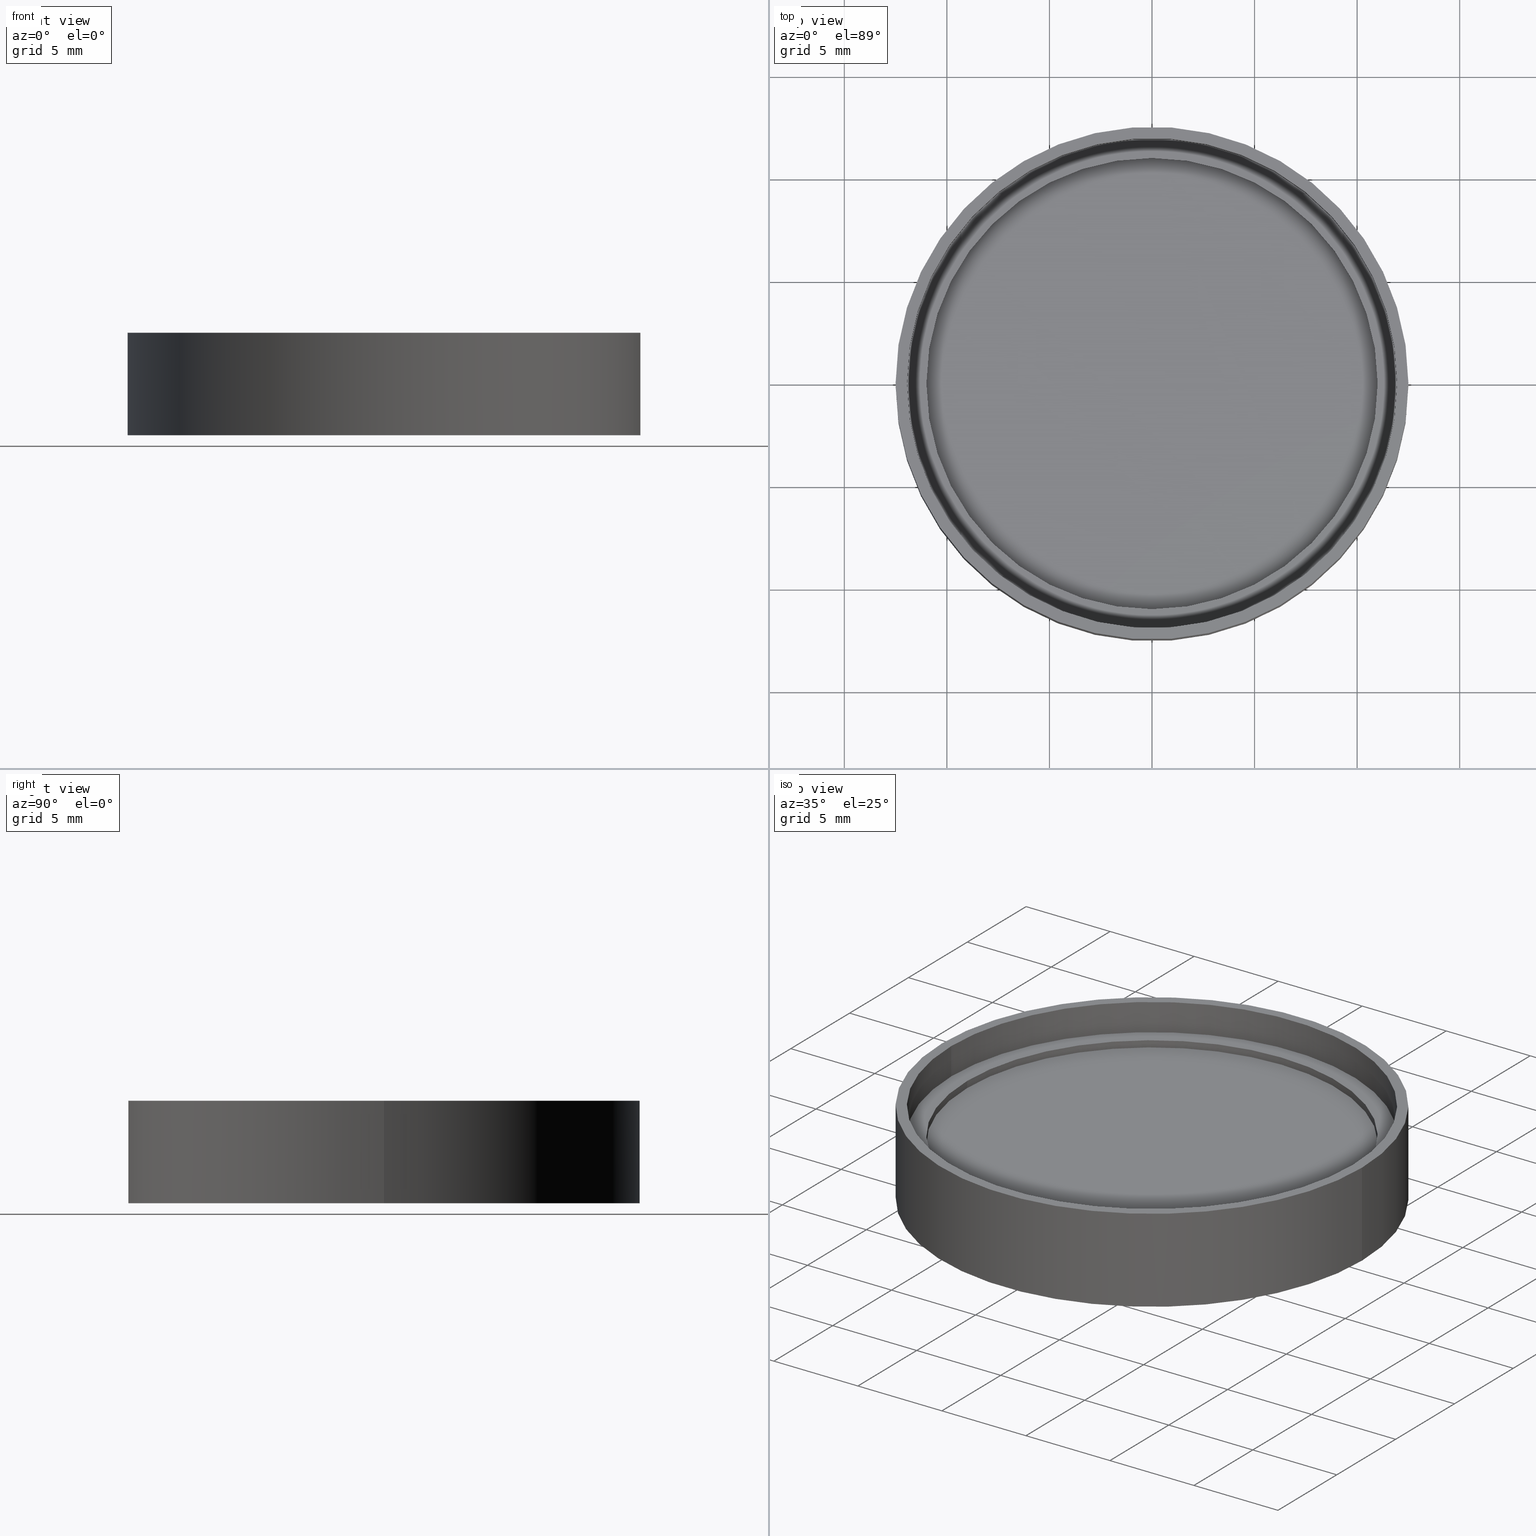
[diagram: canonical four-view strip — front | top / right | iso, engineering-drawing reading convention]
A machine part, canonical four-view strip (front | top / right | iso — engineering-drawing reading convention). The complete STEP part file that produces these views, byte-faithful:
ISO-10303-21;
HEADER;
FILE_DESCRIPTION (( 'STEP AP214' ),
    '1' );
FILE_NAME ('25mm 5mm.STEP',
    '2020-03-11T02:47:10',
    ( '' ),
    ( '' ),
    'SwSTEP 2.0',
    'SolidWorks 2016',
    '' );
FILE_SCHEMA (( 'AUTOMOTIVE_DESIGN' ));
ENDSEC;

DATA;
#1 = CARTESIAN_POINT ( 'NONE',  ( 0.0000000000000000000, 0.0000000000000000000, -3.685474932512929200 ) ) ;
#2 = PLANE ( 'NONE',  #582 ) ;
#3 = DIRECTION ( 'NONE',  ( -1.000000000000000000, 0.0000000000000000000, 0.0000000000000000000 ) ) ;
#4 = DIRECTION ( 'NONE',  ( -0.0000000000000000000, -0.0000000000000000000, -1.000000000000000000 ) ) ;
#5 = CIRCLE ( 'NONE', #443, 12.50000000000000000 ) ;
#6 = VECTOR ( 'NONE', #574, 1000.000000000000000 ) ;
#7 = ORIENTED_EDGE ( 'NONE', *, *, #312, .T. ) ;
#8 = CARTESIAN_POINT ( 'NONE',  ( 0.0000000000000000000, 0.0000000000000000000, 0.3809999999999997300 ) ) ;
#9 = ORIENTED_EDGE ( 'NONE', *, *, #300, .T. ) ;
#10 = DIRECTION ( 'NONE',  ( 0.0000000000000000000, 0.0000000000000000000, 1.000000000000000000 ) ) ;
#11 = CYLINDRICAL_SURFACE ( 'NONE', #421, 11.00000000000000000 ) ;
#12 = UNCERTAINTY_MEASURE_WITH_UNIT (LENGTH_MEASURE( 1.000000000000000100E-005 ), #60, 'distance_accuracy_value', 'NONE');
#13 = DIRECTION ( 'NONE',  ( -1.000000000000000000, 0.0000000000000000000, 0.0000000000000000000 ) ) ;
#14 = DIRECTION ( 'NONE',  ( 1.000000000000000000, 0.0000000000000000000, 0.0000000000000000000 ) ) ;
#15 = DIRECTION ( 'NONE',  ( -1.000000000000000000, 0.0000000000000000000, 0.0000000000000000000 ) ) ;
#16 = EDGE_CURVE ( 'NONE', #549, #542, #232, .T. ) ;
#17 = AXIS2_PLACEMENT_3D ( 'NONE', #508, #392, #665 ) ;
#18 = ADVANCED_FACE ( 'NONE', ( #250 ), #363, .F. ) ;
#19 = VECTOR ( 'NONE', #591, 1000.000000000000000 ) ;
#20 = ORIENTED_EDGE ( 'NONE', *, *, #82, .T. ) ;
#21 = ORIENTED_EDGE ( 'NONE', *, *, #607, .T. ) ;
#22 = FACE_OUTER_BOUND ( 'NONE', #616, .T. ) ;
#23 = CARTESIAN_POINT ( 'NONE',  ( 11.00000000000000000, 0.0000000000000000000, -28.73169837220808300 ) ) ;
#24 = PLANE ( 'NONE',  #256 ) ;
#25 = FILL_AREA_STYLE_COLOUR ( '', #451 ) ;
#26 = EDGE_CURVE ( 'NONE', #115, #106, #131, .T. ) ;
#27 = PRESENTATION_LAYER_ASSIGNMENT (  '', '', ( #709 ) ) ;
#28 =( NAMED_UNIT ( * ) PLANE_ANGLE_UNIT ( ) SI_UNIT ( $, .RADIAN. ) );
#29 = ORIENTED_EDGE ( 'NONE', *, *, #89, .T. ) ;
#30 = FACE_OUTER_BOUND ( 'NONE', #689, .T. ) ;
#31 = EDGE_LOOP ( 'NONE', ( #658, #722, #93, #160 ) ) ;
#32 = FACE_BOUND ( 'NONE', #476, .T. ) ;
#33 = EDGE_CURVE ( 'NONE', #57, #697, #518, .T. ) ;
#34 =( LENGTH_UNIT ( ) NAMED_UNIT ( * ) SI_UNIT ( .MILLI., .METRE. ) );
#35 =( GEOMETRIC_REPRESENTATION_CONTEXT ( 3 ) GLOBAL_UNCERTAINTY_ASSIGNED_CONTEXT ( ( #543 ) ) GLOBAL_UNIT_ASSIGNED_CONTEXT ( ( #530, #643, #406 ) ) REPRESENTATION_CONTEXT ( 'NONE', 'WORKASPACE' ) );
#36 = FILL_AREA_STYLE_COLOUR ( '', #55 ) ;
#37 = FILL_AREA_STYLE ('',( #36 ) ) ;
#38 = EDGE_CURVE ( 'NONE', #562, #141, #703, .T. ) ;
#39 = CARTESIAN_POINT ( 'NONE',  ( -11.93799999999999700, 1.170404575977001900E-015, 2.380999999999999300 ) ) ;
#40 = EDGE_LOOP ( 'NONE', ( #48, #216 ) ) ;
#41 = SURFACE_STYLE_USAGE ( .BOTH. , #583 ) ;
#42 = AXIS2_PLACEMENT_3D ( 'NONE', #568, #515, #74 ) ;
#43 = DIRECTION ( 'NONE',  ( -0.0000000000000000000, -0.0000000000000000000, -1.000000000000000000 ) ) ;
#44 = COLOUR_RGB ( '',1.000000000000000000, 1.000000000000000000, 1.000000000000000000 ) ;
#45 = PRESENTATION_STYLE_ASSIGNMENT (( #41 ) ) ;
#46 = CIRCLE ( 'NONE', #95, 11.00000000000000000 ) ;
#47 = ORIENTED_EDGE ( 'NONE', *, *, #38, .F. ) ;
#48 = ORIENTED_EDGE ( 'NONE', *, *, #488, .T. ) ;
#49 = CARTESIAN_POINT ( 'NONE',  ( 11.00000000000000000, 0.0000000000000000000, 2.761999999999998700 ) ) ;
#50 = EDGE_CURVE ( 'NONE', #106, #115, #646, .T. ) ;
#51 =( GEOMETRIC_REPRESENTATION_CONTEXT ( 3 ) GLOBAL_UNCERTAINTY_ASSIGNED_CONTEXT ( ( #12 ) ) GLOBAL_UNIT_ASSIGNED_CONTEXT ( ( #60, #552, #53 ) ) REPRESENTATION_CONTEXT ( 'NONE', 'WORKASPACE' ) );
#52 =( NAMED_UNIT ( * ) SI_UNIT ( $, .STERADIAN. ) SOLID_ANGLE_UNIT ( ) );
#53 =( NAMED_UNIT ( * ) SI_UNIT ( $, .STERADIAN. ) SOLID_ANGLE_UNIT ( ) );
#54 = FACE_OUTER_BOUND ( 'NONE', #581, .T. ) ;
#55 = COLOUR_RGB ( '',1.000000000000000000, 1.000000000000000000, 1.000000000000000000 ) ;
#56 = AXIS2_PLACEMENT_3D ( 'NONE', #222, #173, #122 ) ;
#57 = VERTEX_POINT ( 'NONE', #148 ) ;
#58 = SURFACE_SIDE_STYLE ('',( #407 ) ) ;
#59 = CARTESIAN_POINT ( 'NONE',  ( -11.94999999999999900, 0.0000000000000000000, 4.380999999999999300 ) ) ;
#60 =( LENGTH_UNIT ( ) NAMED_UNIT ( * ) SI_UNIT ( .MILLI., .METRE. ) );
#61 = ADVANCED_FACE ( 'NONE', ( #203 ), #474, .T. ) ;
#62 = PLANE ( 'NONE',  #56 ) ;
#63 = DIRECTION ( 'NONE',  ( 0.0000000000000000000, 0.0000000000000000000, 1.000000000000000000 ) ) ;
#64 = ADVANCED_FACE ( 'NONE', ( #635 ), #158, .T. ) ;
#65 = CIRCLE ( 'NONE', #626, 11.94999999999999900 ) ;
#66 = FILL_AREA_STYLE_COLOUR ( '', #240 ) ;
#67 = VECTOR ( 'NONE', #304, 1000.000000000000000 ) ;
#68 = CARTESIAN_POINT ( 'NONE',  ( -11.94999999999999900, 1.416795422900454500E-015, 0.3810000000000011200 ) ) ;
#69 = CIRCLE ( 'NONE', #152, 12.14999999999999900 ) ;
#70 = EDGE_LOOP ( 'NONE', ( #279, #303, #628, #422 ) ) ;
#71 = ORIENTED_EDGE ( 'NONE', *, *, #16, .F. ) ;
#72 = CARTESIAN_POINT ( 'NONE',  ( 0.0000000000000000000, -2.915787728451079300E-016, 2.380999999999999300 ) ) ;
#73 = ADVANCED_FACE ( 'NONE', ( #54 ), #459, .T. ) ;
#74 = DIRECTION ( 'NONE',  ( 1.000000000000000000, 0.0000000000000000000, 0.0000000000000000000 ) ) ;
#75 = DIRECTION ( 'NONE',  ( -1.000000000000000000, 0.0000000000000000000, 0.0000000000000000000 ) ) ;
#76 = ORIENTED_EDGE ( 'NONE', *, *, #107, .F. ) ;
#77 = PLANE ( 'NONE',  #482 ) ;
#78 = ORIENTED_EDGE ( 'NONE', *, *, #481, .F. ) ;
#79 = EDGE_CURVE ( 'NONE', #181, #310, #301, .T. ) ;
#80 = CARTESIAN_POINT ( 'NONE',  ( 11.94999999999999900, -4.665750208063244300E-017, 0.3810000000000011200 ) ) ;
#81 = CARTESIAN_POINT ( 'NONE',  ( 0.0000000000000000000, 0.0000000000000000000, -0.6189999999999997700 ) ) ;
#82 = EDGE_CURVE ( 'NONE', #571, #115, #680, .T. ) ;
#83 = MECHANICAL_DESIGN_GEOMETRIC_PRESENTATION_REPRESENTATION (  '', ( #356 ), #51 ) ;
#84 = CARTESIAN_POINT ( 'NONE',  ( 0.0000000000000000000, 0.0000000000000000000, -3.685474932512929200 ) ) ;
#85 = EDGE_LOOP ( 'NONE', ( #651, #20, #565, #347 ) ) ;
#86 = ORIENTED_EDGE ( 'NONE', *, *, #708, .T. ) ;
#87 =( NAMED_UNIT ( * ) SI_UNIT ( $, .STERADIAN. ) SOLID_ANGLE_UNIT ( ) );
#88 = CARTESIAN_POINT ( 'NONE',  ( 0.0000000000000000000, 0.0000000000000000000, 0.0000000000000000000 ) ) ;
#89 = EDGE_CURVE ( 'NONE', #255, #531, #669, .T. ) ;
#90 = PRESENTATION_LAYER_ASSIGNMENT (  '', '', ( #245 ) ) ;
#91 = CARTESIAN_POINT ( 'NONE',  ( 0.0000000000000000000, -4.665750208063244300E-017, 2.381000000000001100 ) ) ;
#92 = PRESENTATION_STYLE_ASSIGNMENT (( #547 ) ) ;
#93 = ORIENTED_EDGE ( 'NONE', *, *, #38, .T. ) ;
#94 = APPLICATION_CONTEXT ( 'automotive_design' ) ;
#95 = AXIS2_PLACEMENT_3D ( 'NONE', #130, #516, #282 ) ;
#96 = CARTESIAN_POINT ( 'NONE',  ( 0.0000000000000000000, 0.0000000000000000000, 2.761999999999998700 ) ) ;
#97 = DIRECTION ( 'NONE',  ( 0.0000000000000000000, 0.0000000000000000000, 1.000000000000000000 ) ) ;
#98 = DIRECTION ( 'NONE',  ( -0.0000000000000000000, -0.0000000000000000000, 1.000000000000000000 ) ) ;
#99 = VECTOR ( 'NONE', #413, 1000.000000000000000 ) ;
#100 = EDGE_LOOP ( 'NONE', ( #614, #29 ) ) ;
#101 = ORIENTED_EDGE ( 'NONE', *, *, #600, .T. ) ;
#102 = CARTESIAN_POINT ( 'NONE',  ( 0.0000000000000000000, 0.0000000000000000000, -28.73169837220808300 ) ) ;
#103 =( GEOMETRIC_REPRESENTATION_CONTEXT ( 3 ) GLOBAL_UNCERTAINTY_ASSIGNED_CONTEXT ( ( #416 ) ) GLOBAL_UNIT_ASSIGNED_CONTEXT ( ( #146, #359, #358 ) ) REPRESENTATION_CONTEXT ( 'NONE', 'WORKASPACE' ) );
#104 = AXIS2_PLACEMENT_3D ( 'NONE', #487, #263, #599 ) ;
#105 = CIRCLE ( 'NONE', #348, 12.14999999999999900 ) ;
#106 = VERTEX_POINT ( 'NONE', #197 ) ;
#107 = EDGE_CURVE ( 'NONE', #210, #571, #657, .T. ) ;
#108 = UNCERTAINTY_MEASURE_WITH_UNIT (LENGTH_MEASURE( 1.000000000000000100E-005 ), #170, 'distance_accuracy_value', 'NONE');
#109 = DIRECTION ( 'NONE',  ( -1.000000000000000000, 0.0000000000000000000, 0.0000000000000000000 ) ) ;
#110 = DIRECTION ( 'NONE',  ( -0.0000000000000000000, -0.0000000000000000000, -1.000000000000000000 ) ) ;
#111 = EDGE_CURVE ( 'NONE', #714, #377, #594, .T. ) ;
#112 = AXIS2_PLACEMENT_3D ( 'NONE', #274, #230, #109 ) ;
#113 = VERTEX_POINT ( 'NONE', #214 ) ;
#114 = LINE ( 'NONE', #277, #725 ) ;
#115 = VERTEX_POINT ( 'NONE', #367 ) ;
#116 = CARTESIAN_POINT ( 'NONE',  ( 0.0000000000000000000, -4.665750208063244300E-017, 2.381000000000001100 ) ) ;
#117 = ADVANCED_FACE ( 'NONE', ( #528 ), #448, .F. ) ;
#118 = EDGE_CURVE ( 'NONE', #113, #549, #511, .T. ) ;
#119 =( GEOMETRIC_REPRESENTATION_CONTEXT ( 3 ) GLOBAL_UNCERTAINTY_ASSIGNED_CONTEXT ( ( #472 ) ) GLOBAL_UNIT_ASSIGNED_CONTEXT ( ( #366, #419, #640 ) ) REPRESENTATION_CONTEXT ( 'NONE', 'WORKASPACE' ) );
#120 = DIRECTION ( 'NONE',  ( 1.000000000000000000, 0.0000000000000000000, 0.0000000000000000000 ) ) ;
#121 = DIRECTION ( 'NONE',  ( -1.000000000000000000, 0.0000000000000000000, 0.0000000000000000000 ) ) ;
#122 = DIRECTION ( 'NONE',  ( -1.000000000000000000, 0.0000000000000000000, 0.0000000000000000000 ) ) ;
#123 = PLANE ( 'NONE',  #727 ) ;
#124 = LINE ( 'NONE', #80, #207 ) ;
#125 = EDGE_CURVE ( 'NONE', #141, #429, #627, .T. ) ;
#126 = ORIENTED_EDGE ( 'NONE', *, *, #699, .F. ) ;
#127 = ORIENTED_EDGE ( 'NONE', *, *, #415, .T. ) ;
#128 = DIRECTION ( 'NONE',  ( 1.000000000000000000, 0.0000000000000000000, -0.0000000000000000000 ) ) ;
#129 = PRESENTATION_LAYER_ASSIGNMENT (  '', '', ( #356 ) ) ;
#130 = CARTESIAN_POINT ( 'NONE',  ( 0.0000000000000000000, 0.0000000000000000000, -0.6190000000000003300 ) ) ;
#131 = CIRCLE ( 'NONE', #284, 11.93799999999999700 ) ;
#132 = EDGE_LOOP ( 'NONE', ( #570, #296, #268, #539 ) ) ;
#133 = FACE_OUTER_BOUND ( 'NONE', #85, .T. ) ;
#134 = CARTESIAN_POINT ( 'NONE',  ( -11.94999999999999900, 0.0000000000000000000, 4.381000000000000200 ) ) ;
#135 = DIRECTION ( 'NONE',  ( 1.000000000000000000, 0.0000000000000000000, 0.0000000000000000000 ) ) ;
#136 = DIRECTION ( 'NONE',  ( -1.000000000000000000, 0.0000000000000000000, 0.0000000000000000000 ) ) ;
#137 = PRODUCT_CONTEXT ( 'NONE', #584, 'mechanical' ) ;
#138 = SURFACE_STYLE_FILL_AREA ( #163 ) ;
#139 = LINE ( 'NONE', #610, #712 ) ;
#140 = CIRCLE ( 'NONE', #42, 11.93799999999999700 ) ;
#141 = VERTEX_POINT ( 'NONE', #259 ) ;
#142 = CARTESIAN_POINT ( 'NONE',  ( 2.530701911620195300E-016, 0.0000000000000000000, -0.6190000000000003300 ) ) ;
#143 = STYLED_ITEM ( 'NONE', ( #45 ), #61 ) ;
#144 = LINE ( 'NONE', #409, #606 ) ;
#145 = SURFACE_STYLE_USAGE ( .BOTH. , #698 ) ;
#146 =( LENGTH_UNIT ( ) NAMED_UNIT ( * ) SI_UNIT ( .MILLI., .METRE. ) );
#147 = FILL_AREA_STYLE ('',( #25 ) ) ;
#148 = CARTESIAN_POINT ( 'NONE',  ( 11.94999999999999900, 1.463452924981086900E-015, 2.381000000000001100 ) ) ;
#149 = ORIENTED_EDGE ( 'NONE', *, *, #125, .F. ) ;
#150 = EDGE_LOOP ( 'NONE', ( #437, #338 ) ) ;
#151 = CARTESIAN_POINT ( 'NONE',  ( 0.0000000000000000000, -4.665750208063244300E-017, 0.3810000000000011200 ) ) ;
#152 = AXIS2_PLACEMENT_3D ( 'NONE', #401, #517, #235 ) ;
#153 = CARTESIAN_POINT ( 'NONE',  ( 0.0000000000000000000, -4.665750208063244300E-017, 0.3810000000000011200 ) ) ;
#154 = BREP_WITH_VOIDS ( 'NONE', #492, ( #432 ) );
#155 = SURFACE_SIDE_STYLE ('',( #320 ) ) ;
#156 = STYLED_ITEM ( 'NONE', ( #645 ), #171 ) ;
#157 = DIRECTION ( 'NONE',  ( 0.0000000000000000000, 0.0000000000000000000, 1.000000000000000000 ) ) ;
#158 = CYLINDRICAL_SURFACE ( 'NONE', #360, 11.94999999999999900 ) ;
#159 = FACE_BOUND ( 'NONE', #364, .T. ) ;
#160 = ORIENTED_EDGE ( 'NONE', *, *, #125, .T. ) ;
#161 = EDGE_LOOP ( 'NONE', ( #423, #384 ) ) ;
#162 = FACE_OUTER_BOUND ( 'NONE', #603, .T. ) ;
#163 = FILL_AREA_STYLE ('',( #381 ) ) ;
#164 = PRESENTATION_LAYER_ASSIGNMENT (  '', '', ( #662 ) ) ;
#165 = ORIENTED_EDGE ( 'NONE', *, *, #300, .F. ) ;
#166 = DIRECTION ( 'NONE',  ( -0.0000000000000000000, -0.0000000000000000000, -1.000000000000000000 ) ) ;
#167 = ADVANCED_FACE ( 'NONE', ( #577 ), #247, .F. ) ;
#168 = EDGE_LOOP ( 'NONE', ( #524, #314 ) ) ;
#169 = DIRECTION ( 'NONE',  ( -0.0000000000000000000, -0.0000000000000000000, -1.000000000000000000 ) ) ;
#170 =( LENGTH_UNIT ( ) NAMED_UNIT ( * ) SI_UNIT ( .MILLI., .METRE. ) );
#171 = ADVANCED_FACE ( 'NONE', ( #361 ), #686, .T. ) ;
#172 = CARTESIAN_POINT ( 'NONE',  ( -11.00000000000000000, 0.0000000000000000000, -0.6190000000000003300 ) ) ;
#173 = DIRECTION ( 'NONE',  ( -0.0000000000000000000, 0.0000000000000000000, -1.000000000000000000 ) ) ;
#174 = DIRECTION ( 'NONE',  ( -0.0000000000000000000, -0.0000000000000000000, -1.000000000000000000 ) ) ;
#175 = ORIENTED_EDGE ( 'NONE', *, *, #708, .F. ) ;
#176 = FACE_OUTER_BOUND ( 'NONE', #522, .T. ) ;
#177 = MECHANICAL_DESIGN_GEOMETRIC_PRESENTATION_REPRESENTATION (  '', ( #662 ), #205 ) ;
#178 = ORIENTED_EDGE ( 'NONE', *, *, #211, .F. ) ;
#179 = DIRECTION ( 'NONE',  ( -1.000000000000000000, 0.0000000000000000000, 0.0000000000000000000 ) ) ;
#180 = SURFACE_STYLE_FILL_AREA ( #444 ) ;
#181 = VERTEX_POINT ( 'NONE', #49 ) ;
#182 = CARTESIAN_POINT ( 'NONE',  ( 12.14999999999999900, 1.487945860964034000E-015, 0.3810000000000011200 ) ) ;
#183 = AXIS2_PLACEMENT_3D ( 'NONE', #644, #246, #701 ) ;
#184 = DIRECTION ( 'NONE',  ( 1.000000000000000000, 0.0000000000000000000, 0.0000000000000000000 ) ) ;
#185 = DIRECTION ( 'NONE',  ( 1.000000000000000000, 0.0000000000000000000, -0.0000000000000000000 ) ) ;
#186 = SURFACE_STYLE_FILL_AREA ( #37 ) ;
#187 = ORIENTED_EDGE ( 'NONE', *, *, #111, .F. ) ;
#188 = PRODUCT_DEFINITION ( 'δ֪', '', #286, #719 ) ;
#189 = CARTESIAN_POINT ( 'NONE',  ( -11.94999999999999900, 0.0000000000000000000, -3.685474932512929200 ) ) ;
#190 = AXIS2_PLACEMENT_3D ( 'NONE', #72, #10, #14 ) ;
#191 = DIRECTION ( 'NONE',  ( -0.0000000000000000000, -0.0000000000000000000, -1.000000000000000000 ) ) ;
#192 = FACE_BOUND ( 'NONE', #193, .T. ) ;
#193 = EDGE_LOOP ( 'NONE', ( #76, #195 ) ) ;
#194 = FACE_BOUND ( 'NONE', #241, .T. ) ;
#195 = ORIENTED_EDGE ( 'NONE', *, *, #648, .F. ) ;
#196 = PRESENTATION_LAYER_ASSIGNMENT (  '', '', ( #156 ) ) ;
#197 = CARTESIAN_POINT ( 'NONE',  ( 11.93799999999999700, -2.915787728451079300E-016, 2.761999999999998700 ) ) ;
#198 = PRESENTATION_STYLE_ASSIGNMENT (( #281 ) ) ;
#199 = CARTESIAN_POINT ( 'NONE',  ( 0.0000000000000000000, -2.915787728451079300E-016, 2.761999999999998700 ) ) ;
#200 = EDGE_CURVE ( 'NONE', #475, #411, #602, .T. ) ;
#201 = CARTESIAN_POINT ( 'NONE',  ( 0.0000000000000000000, -4.665750208063244300E-017, 2.381000000000001100 ) ) ;
#202 = DIRECTION ( 'NONE',  ( 1.000000000000000000, 0.0000000000000000000, -0.0000000000000000000 ) ) ;
#203 = FACE_OUTER_BOUND ( 'NONE', #168, .T. ) ;
#204 = ORIENTED_EDGE ( 'NONE', *, *, #221, .F. ) ;
#205 =( GEOMETRIC_REPRESENTATION_CONTEXT ( 3 ) GLOBAL_UNCERTAINTY_ASSIGNED_CONTEXT ( ( #108 ) ) GLOBAL_UNIT_ASSIGNED_CONTEXT ( ( #170, #219, #329 ) ) REPRESENTATION_CONTEXT ( 'NONE', 'WORKASPACE' ) );
#206 = CARTESIAN_POINT ( 'NONE',  ( 0.0000000000000000000, 0.0000000000000000000, 0.3810000000000011200 ) ) ;
#207 = VECTOR ( 'NONE', #349, 1000.000000000000000 ) ;
#208 = ORIENTED_EDGE ( 'NONE', *, *, #33, .T. ) ;
#209 =( NAMED_UNIT ( * ) SI_UNIT ( $, .STERADIAN. ) SOLID_ANGLE_UNIT ( ) );
#210 = VERTEX_POINT ( 'NONE', #592 ) ;
#211 = EDGE_CURVE ( 'NONE', #255, #336, #436, .T. ) ;
#212 =( GEOMETRIC_REPRESENTATION_CONTEXT ( 3 ) GLOBAL_UNCERTAINTY_ASSIGNED_CONTEXT ( ( #227 ) ) GLOBAL_UNIT_ASSIGNED_CONTEXT ( ( #339, #505, #623 ) ) REPRESENTATION_CONTEXT ( 'NONE', 'WORKASPACE' ) );
#213 = DIRECTION ( 'NONE',  ( 1.000000000000000000, 0.0000000000000000000, 0.0000000000000000000 ) ) ;
#214 = CARTESIAN_POINT ( 'NONE',  ( -12.49999999999999800, 0.0000000000000000000, 4.380999999999999300 ) ) ;
#215 = DIRECTION ( 'NONE',  ( 1.000000000000000000, 0.0000000000000000000, -0.0000000000000000000 ) ) ;
#216 = ORIENTED_EDGE ( 'NONE', *, *, #262, .T. ) ;
#217 = DIRECTION ( 'NONE',  ( -1.000000000000000000, 0.0000000000000000000, 0.0000000000000000000 ) ) ;
#218 = EDGE_CURVE ( 'NONE', #310, #181, #538, .T. ) ;
#219 =( NAMED_UNIT ( * ) PLANE_ANGLE_UNIT ( ) SI_UNIT ( $, .RADIAN. ) );
#220 = CARTESIAN_POINT ( 'NONE',  ( 12.50000000000000000, 1.530808498934191500E-015, -0.6189999999999997700 ) ) ;
#221 = EDGE_CURVE ( 'NONE', #461, #485, #139, .T. ) ;
#222 = CARTESIAN_POINT ( 'NONE',  ( -12.14999999999999900, 0.0000000000000000000, 0.5810000000000011800 ) ) ;
#223 = ORIENTED_EDGE ( 'NONE', *, *, #648, .T. ) ;
#224 = ORIENTED_EDGE ( 'NONE', *, *, #200, .T. ) ;
#225 = EDGE_LOOP ( 'NONE', ( #438, #223, #452, #717 ) ) ;
#226 = DIRECTION ( 'NONE',  ( -0.0000000000000000000, -0.0000000000000000000, -1.000000000000000000 ) ) ;
#227 = UNCERTAINTY_MEASURE_WITH_UNIT (LENGTH_MEASURE( 1.000000000000000100E-005 ), #339, 'distance_accuracy_value', 'NONE');
#228 = AXIS2_PLACEMENT_3D ( 'NONE', #533, #585, #479 ) ;
#229 =( NAMED_UNIT ( * ) PLANE_ANGLE_UNIT ( ) SI_UNIT ( $, .RADIAN. ) );
#230 = DIRECTION ( 'NONE',  ( 0.0000000000000000000, 0.0000000000000000000, 1.000000000000000000 ) ) ;
#231 = CIRCLE ( 'NONE', #558, 12.50000000000000000 ) ;
#232 = LINE ( 'NONE', #647, #67 ) ;
#233 = UNCERTAINTY_MEASURE_WITH_UNIT (LENGTH_MEASURE( 1.000000000000000100E-005 ), #426, 'distance_accuracy_value', 'NONE');
#234 = AXIS2_PLACEMENT_3D ( 'NONE', #342, #337, #3 ) ;
#235 = DIRECTION ( 'NONE',  ( -1.000000000000000000, 0.0000000000000000000, 0.0000000000000000000 ) ) ;
#236 = DIRECTION ( 'NONE',  ( 0.0000000000000000000, 0.0000000000000000000, -1.000000000000000000 ) ) ;
#237 = FACE_OUTER_BOUND ( 'NONE', #724, .T. ) ;
#238 = PRESENTATION_LAYER_ASSIGNMENT (  '', '', ( #143 ) ) ;
#239 = ORIENTED_EDGE ( 'NONE', *, *, #660, .F. ) ;
#240 = COLOUR_RGB ( '',1.000000000000000000, 1.000000000000000000, 1.000000000000000000 ) ;
#241 = EDGE_LOOP ( 'NONE', ( #7, #127 ) ) ;
#242 = FACE_OUTER_BOUND ( 'NONE', #70, .T. ) ;
#243 = PRODUCT ( '25mm 5mm', '25mm 5mm', '', ( #137 ) ) ;
#244 = PLANE ( 'NONE',  #674 ) ;
#245 = STYLED_ITEM ( 'NONE', ( #198 ), #397 ) ;
#246 = DIRECTION ( 'NONE',  ( -0.0000000000000000000, -0.0000000000000000000, -1.000000000000000000 ) ) ;
#247 = CYLINDRICAL_SURFACE ( 'NONE', #486, 11.00000000000000000 ) ;
#248 = CIRCLE ( 'NONE', #275, 11.00000000000000000 ) ;
#249 = ORIENTED_EDGE ( 'NONE', *, *, #532, .T. ) ;
#250 = FACE_OUTER_BOUND ( 'NONE', #31, .T. ) ;
#251 = DIRECTION ( 'NONE',  ( 1.000000000000000000, 0.0000000000000000000, 0.0000000000000000000 ) ) ;
#252 = EDGE_CURVE ( 'NONE', #542, #556, #5, .T. ) ;
#253 = SHAPE_DEFINITION_REPRESENTATION ( #399, #693 ) ;
#254 =( LENGTH_UNIT ( ) NAMED_UNIT ( * ) SI_UNIT ( .MILLI., .METRE. ) );
#255 = VERTEX_POINT ( 'NONE', #555 ) ;
#256 = AXIS2_PLACEMENT_3D ( 'NONE', #395, #679, #128 ) ;
#257 =( NAMED_UNIT ( * ) PLANE_ANGLE_UNIT ( ) SI_UNIT ( $, .RADIAN. ) );
#258 = AXIS2_PLACEMENT_3D ( 'NONE', #317, #309, #598 ) ;
#259 = CARTESIAN_POINT ( 'NONE',  ( -12.14999999999999900, 0.0000000000000000000, 0.3810000000000011200 ) ) ;
#260 = EDGE_LOOP ( 'NONE', ( #313, #346, #249, #204 ) ) ;
#261 = EDGE_LOOP ( 'NONE', ( #175, #372, #484, #589 ) ) ;
#262 = EDGE_CURVE ( 'NONE', #661, #562, #105, .T. ) ;
#263 = DIRECTION ( 'NONE',  ( -0.0000000000000000000, -0.0000000000000000000, -1.000000000000000000 ) ) ;
#264 = MECHANICAL_DESIGN_GEOMETRIC_PRESENTATION_REPRESENTATION (  '', ( #709 ), #494 ) ;
#265 = DIRECTION ( 'NONE',  ( -1.000000000000000000, 0.0000000000000000000, 0.0000000000000000000 ) ) ;
#266 = ORIENTED_EDGE ( 'NONE', *, *, #79, .F. ) ;
#267 = ADVANCED_FACE ( 'NONE', ( #237 ), #446, .F. ) ;
#268 = ORIENTED_EDGE ( 'NONE', *, *, #312, .F. ) ;
#269 = DIRECTION ( 'NONE',  ( 0.0000000000000000000, 0.0000000000000000000, 1.000000000000000000 ) ) ;
#270 = DIRECTION ( 'NONE',  ( 0.0000000000000000000, 0.0000000000000000000, 1.000000000000000000 ) ) ;
#271 = DIRECTION ( 'NONE',  ( 0.0000000000000000000, 0.0000000000000000000, 1.000000000000000000 ) ) ;
#272 = UNCERTAINTY_MEASURE_WITH_UNIT (LENGTH_MEASURE( 1.000000000000000100E-005 ), #504, 'distance_accuracy_value', 'NONE');
#273 = DIRECTION ( 'NONE',  ( -0.0000000000000000000, -0.0000000000000000000, 1.000000000000000000 ) ) ;
#274 = CARTESIAN_POINT ( 'NONE',  ( 0.0000000000000000000, -4.665750208063244300E-017, 0.5810000000000011800 ) ) ;
#275 = AXIS2_PLACEMENT_3D ( 'NONE', #290, #460, #632 ) ;
#276 = CARTESIAN_POINT ( 'NONE',  ( -11.00000000000000000, 0.0000000000000000000, 0.3809999999999997300 ) ) ;
#277 = CARTESIAN_POINT ( 'NONE',  ( 11.93799999999999700, -2.915787728451079300E-016, 2.380999999999999300 ) ) ;
#278 = VECTOR ( 'NONE', #688, 1000.000000000000000 ) ;
#279 = ORIENTED_EDGE ( 'NONE', *, *, #118, .T. ) ;
#280 = ORIENTED_EDGE ( 'NONE', *, *, #684, .F. ) ;
#281 = SURFACE_STYLE_USAGE ( .BOTH. , #456 ) ;
#282 = DIRECTION ( 'NONE',  ( -1.000000000000000000, 0.0000000000000000000, 0.0000000000000000000 ) ) ;
#283 = ADVANCED_FACE ( 'NONE', ( #192, #350 ), #2, .T. ) ;
#284 = AXIS2_PLACEMENT_3D ( 'NONE', #199, #471, #587 ) ;
#285 = SURFACE_STYLE_FILL_AREA ( #597 ) ;
#286 = PRODUCT_DEFINITION_FORMATION_WITH_SPECIFIED_SOURCE ( '�κ�', '', #243, .NOT_KNOWN. ) ;
#287 = ORIENTED_EDGE ( 'NONE', *, *, #252, .F. ) ;
#288 = DIRECTION ( 'NONE',  ( -0.0000000000000000000, -0.0000000000000000000, -1.000000000000000000 ) ) ;
#289 = ORIENTED_EDGE ( 'NONE', *, *, #535, .T. ) ;
#290 = CARTESIAN_POINT ( 'NONE',  ( 0.0000000000000000000, 0.0000000000000000000, 2.381000000000001100 ) ) ;
#291 = AXIS2_PLACEMENT_3D ( 'NONE', #299, #404, #641 ) ;
#292 = CARTESIAN_POINT ( 'NONE',  ( -11.94999999999999900, 0.0000000000000000000, 2.381000000000001100 ) ) ;
#293 = DIRECTION ( 'NONE',  ( -0.0000000000000000000, -0.0000000000000000000, -1.000000000000000000 ) ) ;
#294 = CARTESIAN_POINT ( 'NONE',  ( -12.14999999999999900, 0.0000000000000000000, -3.685474932512929200 ) ) ;
#295 = EDGE_LOOP ( 'NONE', ( #580, #394 ) ) ;
#296 = ORIENTED_EDGE ( 'NONE', *, *, #211, .T. ) ;
#297 = CYLINDRICAL_SURFACE ( 'NONE', #507, 11.00000000000000000 ) ;
#298 = DIRECTION ( 'NONE',  ( 0.0000000000000000000, 0.0000000000000000000, 1.000000000000000000 ) ) ;
#299 = CARTESIAN_POINT ( 'NONE',  ( 0.0000000000000000000, 0.0000000000000000000, 4.380999999999999300 ) ) ;
#300 = EDGE_CURVE ( 'NONE', #485, #377, #546, .T. ) ;
#301 = CIRCLE ( 'NONE', #425, 11.00000000000000000 ) ;
#302 = AXIS2_PLACEMENT_3D ( 'NONE', #721, #273, #120 ) ;
#303 = ORIENTED_EDGE ( 'NONE', *, *, #16, .T. ) ;
#304 = DIRECTION ( 'NONE',  ( -0.0000000000000000000, -0.0000000000000000000, -1.000000000000000000 ) ) ;
#305 = CIRCLE ( 'NONE', #112, 11.94999999999999900 ) ;
#306 = SURFACE_STYLE_FILL_AREA ( #147 ) ;
#307 = DIRECTION ( 'NONE',  ( -1.000000000000000000, 0.0000000000000000000, 0.0000000000000000000 ) ) ;
#308 = DIRECTION ( 'NONE',  ( -0.0000000000000000000, -0.0000000000000000000, -1.000000000000000000 ) ) ;
#309 = DIRECTION ( 'NONE',  ( -0.0000000000000000000, -0.0000000000000000000, -1.000000000000000000 ) ) ;
#310 = VERTEX_POINT ( 'NONE', #663 ) ;
#311 = LINE ( 'NONE', #189, #466 ) ;
#312 = EDGE_CURVE ( 'NONE', #490, #336, #65, .T. ) ;
#313 = ORIENTED_EDGE ( 'NONE', *, *, #567, .F. ) ;
#314 = ORIENTED_EDGE ( 'NONE', *, *, #535, .F. ) ;
#315 = PRESENTATION_LAYER_ASSIGNMENT (  '', '', ( #621 ) ) ;
#316 = LINE ( 'NONE', #455, #639 ) ;
#317 = CARTESIAN_POINT ( 'NONE',  ( 0.0000000000000000000, 0.0000000000000000000, -3.685474932512929200 ) ) ;
#318 = DIRECTION ( 'NONE',  ( -1.000000000000000000, 0.0000000000000000000, 0.0000000000000000000 ) ) ;
#319 = CARTESIAN_POINT ( 'NONE',  ( 0.0000000000000000000, 0.0000000000000000000, -3.685474932512929200 ) ) ;
#320 = SURFACE_STYLE_FILL_AREA ( #537 ) ;
#321 = ORIENTED_EDGE ( 'NONE', *, *, #569, .F. ) ;
#322 = CARTESIAN_POINT ( 'NONE',  ( -11.00000000000000000, 1.347111479062088400E-015, 2.381000000000001100 ) ) ;
#323 = VERTEX_POINT ( 'NONE', #322 ) ;
#324 = CYLINDRICAL_SURFACE ( 'NONE', #190, 11.93799999999999700 ) ;
#325 = AXIS2_PLACEMENT_3D ( 'NONE', #201, #534, #251 ) ;
#326 = CARTESIAN_POINT ( 'NONE',  ( 0.0000000000000000000, 0.0000000000000000000, -0.6190000000000003300 ) ) ;
#327 = ADVANCED_FACE ( 'NONE', ( #633 ), #573, .T. ) ;
#328 = DIRECTION ( 'NONE',  ( -0.0000000000000000000, -0.0000000000000000000, -1.000000000000000000 ) ) ;
#329 =( NAMED_UNIT ( * ) SI_UNIT ( $, .STERADIAN. ) SOLID_ANGLE_UNIT ( ) );
#330 = EDGE_CURVE ( 'NONE', #323, #310, #316, .T. ) ;
#331 = ADVANCED_FACE ( 'NONE', ( #162 ), #11, .F. ) ;
#332 = AXIS2_PLACEMENT_3D ( 'NONE', #1, #328, #179 ) ;
#333 = DIRECTION ( 'NONE',  ( -1.000000000000000000, 0.0000000000000000000, 0.0000000000000000000 ) ) ;
#334 = SURFACE_STYLE_FILL_AREA ( #357 ) ;
#335 = FACE_OUTER_BOUND ( 'NONE', #40, .T. ) ;
#336 = VERTEX_POINT ( 'NONE', #450 ) ;
#337 = DIRECTION ( 'NONE',  ( -0.0000000000000000000, -0.0000000000000000000, -1.000000000000000000 ) ) ;
#338 = ORIENTED_EDGE ( 'NONE', *, *, #33, .F. ) ;
#339 =( LENGTH_UNIT ( ) NAMED_UNIT ( * ) SI_UNIT ( .MILLI., .METRE. ) );
#340 = ADVANCED_FACE ( 'NONE', ( #566 ), #297, .F. ) ;
#341 = AXIS2_PLACEMENT_3D ( 'NONE', #153, #308, #431 ) ;
#342 = CARTESIAN_POINT ( 'NONE',  ( 0.0000000000000000000, 0.0000000000000000000, 4.380999999999999300 ) ) ;
#343 = DIRECTION ( 'NONE',  ( 0.0000000000000000000, 0.0000000000000000000, 1.000000000000000000 ) ) ;
#344 = CARTESIAN_POINT ( 'NONE',  ( 0.0000000000000000000, 0.0000000000000000000, 0.3809999999999997300 ) ) ;
#345 = CARTESIAN_POINT ( 'NONE',  ( -11.93799999999999700, 1.170404575977001900E-015, 2.381000000000001100 ) ) ;
#346 = ORIENTED_EDGE ( 'NONE', *, *, #111, .T. ) ;
#347 = ORIENTED_EDGE ( 'NONE', *, *, #420, .F. ) ;
#348 = AXIS2_PLACEMENT_3D ( 'NONE', #666, #659, #557 ) ;
#349 = DIRECTION ( 'NONE',  ( 0.0000000000000000000, 0.0000000000000000000, 1.000000000000000000 ) ) ;
#350 = FACE_OUTER_BOUND ( 'NONE', #150, .T. ) ;
#351 = CARTESIAN_POINT ( 'NONE',  ( 11.94999999999999900, 1.463452924981086900E-015, -3.685474932512929200 ) ) ;
#352 = EDGE_LOOP ( 'NONE', ( #101, #630, #386, #280 ) ) ;
#353 = CLOSED_SHELL ( 'NONE', ( #385, #171, #64, #506, #18, #664 ) ) ;
#354 = UNCERTAINTY_MEASURE_WITH_UNIT (LENGTH_MEASURE( 1.000000000000000100E-005 ), #34, 'distance_accuracy_value', 'NONE');
#355 = SURFACE_STYLE_USAGE ( .BOTH. , #414 ) ;
#356 = STYLED_ITEM ( 'NONE', ( #593 ), #283 ) ;
#357 = FILL_AREA_STYLE ('',( #695 ) ) ;
#358 =( NAMED_UNIT ( * ) SI_UNIT ( $, .STERADIAN. ) SOLID_ANGLE_UNIT ( ) );
#359 =( NAMED_UNIT ( * ) PLANE_ANGLE_UNIT ( ) SI_UNIT ( $, .RADIAN. ) );
#360 = AXIS2_PLACEMENT_3D ( 'NONE', #527, #365, #362 ) ;
#361 = FACE_OUTER_BOUND ( 'NONE', #132, .T. ) ;
#362 = DIRECTION ( 'NONE',  ( 1.000000000000000000, 0.0000000000000000000, 0.0000000000000000000 ) ) ;
#363 = CYLINDRICAL_SURFACE ( 'NONE', #642, 12.14999999999999900 ) ;
#364 = EDGE_LOOP ( 'NONE', ( #224, #469 ) ) ;
#365 = DIRECTION ( 'NONE',  ( 0.0000000000000000000, 0.0000000000000000000, 1.000000000000000000 ) ) ;
#366 =( LENGTH_UNIT ( ) NAMED_UNIT ( * ) SI_UNIT ( .MILLI., .METRE. ) );
#367 = CARTESIAN_POINT ( 'NONE',  ( -11.93799999999999700, 1.170404575977001900E-015, 2.761999999999998700 ) ) ;
#368 = EDGE_LOOP ( 'NONE', ( #266, #638 ) ) ;
#369 = AXIS2_PLACEMENT_3D ( 'NONE', #572, #236, #15 ) ;
#370 = EDGE_LOOP ( 'NONE', ( #149, #239 ) ) ;
#371 = SURFACE_SIDE_STYLE ('',( #285 ) ) ;
#372 = ORIENTED_EDGE ( 'NONE', *, *, #200, .F. ) ;
#373 = DIRECTION ( 'NONE',  ( 1.000000000000000000, 0.0000000000000000000, 0.0000000000000000000 ) ) ;
#374 = STYLED_ITEM ( 'NONE', ( #92 ), #154 ) ;
#375 = COLOUR_RGB ( '',1.000000000000000000, 1.000000000000000000, 1.000000000000000000 ) ;
#376 = EDGE_LOOP ( 'NONE', ( #178, #540, #400, #500 ) ) ;
#377 = VERTEX_POINT ( 'NONE', #396 ) ;
#378 = FILL_AREA_STYLE ('',( #442 ) ) ;
#379 = AXIS2_PLACEMENT_3D ( 'NONE', #319, #110, #265 ) ;
#380 = CARTESIAN_POINT ( 'NONE',  ( 0.0000000000000000000, -4.665750208063244300E-017, 2.381000000000001100 ) ) ;
#381 = FILL_AREA_STYLE_COLOUR ( '', #44 ) ;
#382 = UNCERTAINTY_MEASURE_WITH_UNIT (LENGTH_MEASURE( 1.000000000000000100E-005 ), #254, 'distance_accuracy_value', 'NONE');
#383 =( NAMED_UNIT ( * ) SI_UNIT ( $, .STERADIAN. ) SOLID_ANGLE_UNIT ( ) );
#384 = ORIENTED_EDGE ( 'NONE', *, *, #567, .T. ) ;
#385 = ADVANCED_FACE ( 'NONE', ( #430 ), #424, .F. ) ;
#386 = ORIENTED_EDGE ( 'NONE', *, *, #218, .T. ) ;
#387 = STYLED_ITEM ( 'NONE', ( #612 ), #64 ) ;
#388 = VERTEX_POINT ( 'NONE', #512 ) ;
#389 = DIRECTION ( 'NONE',  ( 0.0000000000000000000, 0.0000000000000000000, -1.000000000000000000 ) ) ;
#390 = DIRECTION ( 'NONE',  ( -1.000000000000000000, 0.0000000000000000000, 0.0000000000000000000 ) ) ;
#391 = AXIS2_PLACEMENT_3D ( 'NONE', #434, #63, #619 ) ;
#392 = DIRECTION ( 'NONE',  ( -0.0000000000000000000, -0.0000000000000000000, -1.000000000000000000 ) ) ;
#393 = CARTESIAN_POINT ( 'NONE',  ( 11.94999999999999900, 1.463452924981086900E-015, 4.380999999999999300 ) ) ;
#394 = ORIENTED_EDGE ( 'NONE', *, *, #252, .T. ) ;
#395 = CARTESIAN_POINT ( 'NONE',  ( 3.469446951953614200E-015, 0.0000000000000000000, 0.3810000000000011200 ) ) ;
#396 = CARTESIAN_POINT ( 'NONE',  ( 11.00000000000000000, 1.347111479062088400E-015, -0.6190000000000003300 ) ) ;
#397 = ADVANCED_FACE ( 'NONE', ( #133 ), #324, .T. ) ;
#398 = CARTESIAN_POINT ( 'NONE',  ( 0.0000000000000000000, 0.0000000000000000000, 2.381000000000001100 ) ) ;
#399 = PRODUCT_DEFINITION_SHAPE ( 'NONE', 'NONE',  #188 ) ;
#400 = ORIENTED_EDGE ( 'NONE', *, *, #634, .T. ) ;
#401 = CARTESIAN_POINT ( 'NONE',  ( 0.0000000000000000000, 0.0000000000000000000, 0.3810000000000011200 ) ) ;
#402 = DIRECTION ( 'NONE',  ( -0.0000000000000000000, 0.0000000000000000000, -1.000000000000000000 ) ) ;
#403 = DIRECTION ( 'NONE',  ( -0.0000000000000000000, -0.0000000000000000000, -1.000000000000000000 ) ) ;
#404 = DIRECTION ( 'NONE',  ( -0.0000000000000000000, -0.0000000000000000000, -1.000000000000000000 ) ) ;
#405 = MECHANICAL_DESIGN_GEOMETRIC_PRESENTATION_REPRESENTATION (  '', ( #387 ), #35 ) ;
#406 =( NAMED_UNIT ( * ) SI_UNIT ( $, .STERADIAN. ) SOLID_ANGLE_UNIT ( ) );
#407 = SURFACE_STYLE_FILL_AREA ( #378 ) ;
#408 = COLOUR_RGB ( '',1.000000000000000000, 1.000000000000000000, 1.000000000000000000 ) ;
#409 = CARTESIAN_POINT ( 'NONE',  ( -12.50000000000000000, 0.0000000000000000000, -3.685474932512929200 ) ) ;
#410 = LINE ( 'NONE', #351, #618 ) ;
#411 = VERTEX_POINT ( 'NONE', #393 ) ;
#412 = ORIENTED_EDGE ( 'NONE', *, *, #684, .T. ) ;
#413 = DIRECTION ( 'NONE',  ( -0.0000000000000000000, -0.0000000000000000000, -1.000000000000000000 ) ) ;
#414 = SURFACE_SIDE_STYLE ('',( #306 ) ) ;
#415 = EDGE_CURVE ( 'NONE', #336, #490, #305, .T. ) ;
#416 = UNCERTAINTY_MEASURE_WITH_UNIT (LENGTH_MEASURE( 1.000000000000000100E-005 ), #146, 'distance_accuracy_value', 'NONE');
#417 = AXIS2_PLACEMENT_3D ( 'NONE', #88, #468, #135 ) ;
#418 = DIRECTION ( 'NONE',  ( 0.0000000000000000000, 0.0000000000000000000, 1.000000000000000000 ) ) ;
#419 =( NAMED_UNIT ( * ) PLANE_ANGLE_UNIT ( ) SI_UNIT ( $, .RADIAN. ) );
#420 = EDGE_CURVE ( 'NONE', #210, #106, #114, .T. ) ;
#421 = AXIS2_PLACEMENT_3D ( 'NONE', #678, #226, #681 ) ;
#422 = ORIENTED_EDGE ( 'NONE', *, *, #723, .F. ) ;
#423 = ORIENTED_EDGE ( 'NONE', *, *, #569, .T. ) ;
#424 = CYLINDRICAL_SURFACE ( 'NONE', #462, 12.14999999999999900 ) ;
#425 = AXIS2_PLACEMENT_3D ( 'NONE', #96, #298, #477 ) ;
#426 =( LENGTH_UNIT ( ) NAMED_UNIT ( * ) SI_UNIT ( .MILLI., .METRE. ) );
#427 = CIRCLE ( 'NONE', #608, 11.00000000000000000 ) ;
#428 = AXIS2_PLACEMENT_3D ( 'NONE', #380, #609, #563 ) ;
#429 = VERTEX_POINT ( 'NONE', #182 ) ;
#430 = FACE_OUTER_BOUND ( 'NONE', #672, .T. ) ;
#431 = DIRECTION ( 'NONE',  ( 1.000000000000000000, 0.0000000000000000000, 0.0000000000000000000 ) ) ;
#432 = ORIENTED_CLOSED_SHELL ( 'NONE', *, #353, .F. );
#433 = DIRECTION ( 'NONE',  ( -0.0000000000000000000, -0.0000000000000000000, -1.000000000000000000 ) ) ;
#434 = CARTESIAN_POINT ( 'NONE',  ( 0.0000000000000000000, -2.915787728451079300E-016, 2.380999999999999300 ) ) ;
#435 = ADVANCED_FACE ( 'NONE', ( #706 ), #123, .T. ) ;
#436 = LINE ( 'NONE', #68, #702 ) ;
#437 = ORIENTED_EDGE ( 'NONE', *, *, #449, .F. ) ;
#438 = ORIENTED_EDGE ( 'NONE', *, *, #82, .F. ) ;
#439 = SURFACE_STYLE_USAGE ( .BOTH. , #675 ) ;
#440 = ADVANCED_FACE ( 'NONE', ( #242 ), #671, .T. ) ;
#441 = CARTESIAN_POINT ( 'NONE',  ( 12.49999999999999800, 1.530808498934191300E-015, 4.380999999999999300 ) ) ;
#442 = FILL_AREA_STYLE_COLOUR ( '', #576 ) ;
#443 = AXIS2_PLACEMENT_3D ( 'NONE', #495, #166, #333 ) ;
#444 = FILL_AREA_STYLE ('',( #66 ) ) ;
#445 = PRESENTATION_STYLE_ASSIGNMENT (( #355 ) ) ;
#446 = CYLINDRICAL_SURFACE ( 'NONE', #379, 11.94999999999999900 ) ;
#447 = CARTESIAN_POINT ( 'NONE',  ( 0.0000000000000000000, -4.665750208063244300E-017, 0.3810000000000011200 ) ) ;
#448 = CYLINDRICAL_SURFACE ( 'NONE', #258, 11.94999999999999900 ) ;
#449 = EDGE_CURVE ( 'NONE', #697, #57, #615, .T. ) ;
#450 = CARTESIAN_POINT ( 'NONE',  ( -11.94999999999999900, 1.416795422900454500E-015, 0.5810000000000011800 ) ) ;
#451 = COLOUR_RGB ( '',1.000000000000000000, 1.000000000000000000, 1.000000000000000000 ) ;
#452 = ORIENTED_EDGE ( 'NONE', *, *, #420, .T. ) ;
#453 = MECHANICAL_DESIGN_GEOMETRIC_PRESENTATION_REPRESENTATION (  '', ( #374 ), #473 ) ;
#454 = DIRECTION ( 'NONE',  ( 1.000000000000000000, 0.0000000000000000000, 0.0000000000000000000 ) ) ;
#455 = CARTESIAN_POINT ( 'NONE',  ( -11.00000000000000000, 1.347111479062088400E-015, -28.73169837220808300 ) ) ;
#456 = SURFACE_SIDE_STYLE ('',( #550 ) ) ;
#457 = ADVANCED_FACE ( 'NONE', ( #22 ), #520, .F. ) ;
#458 = DIRECTION ( 'NONE',  ( 0.0000000000000000000, 0.0000000000000000000, 1.000000000000000000 ) ) ;
#459 = CYLINDRICAL_SURFACE ( 'NONE', #228, 12.50000000000000000 ) ;
#460 = DIRECTION ( 'NONE',  ( -0.0000000000000000000, -0.0000000000000000000, -1.000000000000000000 ) ) ;
#461 = VERTEX_POINT ( 'NONE', #276 ) ;
#462 = AXIS2_PLACEMENT_3D ( 'NONE', #503, #174, #121 ) ;
#463 = DIRECTION ( 'NONE',  ( -1.000000000000000000, 0.0000000000000000000, 0.0000000000000000000 ) ) ;
#464 = CARTESIAN_POINT ( 'NONE',  ( 12.14999999999999900, 1.487945860964034000E-015, 0.5810000000000016300 ) ) ;
#465 = AXIS2_PLACEMENT_3D ( 'NONE', #480, #650, #373 ) ;
#466 = VECTOR ( 'NONE', #288, 1000.000000000000000 ) ;
#467 = ORIENTED_EDGE ( 'NONE', *, *, #532, .F. ) ;
#468 = DIRECTION ( 'NONE',  ( 0.0000000000000000000, 0.0000000000000000000, 1.000000000000000000 ) ) ;
#469 = ORIENTED_EDGE ( 'NONE', *, *, #481, .T. ) ;
#470 = MECHANICAL_DESIGN_GEOMETRIC_PRESENTATION_REPRESENTATION (  '', ( #621 ), #655 ) ;
#471 = DIRECTION ( 'NONE',  ( -0.0000000000000000000, -0.0000000000000000000, -1.000000000000000000 ) ) ;
#472 = UNCERTAINTY_MEASURE_WITH_UNIT (LENGTH_MEASURE( 1.000000000000000100E-005 ), #366, 'distance_accuracy_value', 'NONE');
#473 =( GEOMETRIC_REPRESENTATION_CONTEXT ( 3 ) GLOBAL_UNCERTAINTY_ASSIGNED_CONTEXT ( ( #382 ) ) GLOBAL_UNIT_ASSIGNED_CONTEXT ( ( #254, #257, #52 ) ) REPRESENTATION_CONTEXT ( 'NONE', 'WORKASPACE' ) );
#474 = PLANE ( 'NONE',  #691 ) ;
#475 = VERTEX_POINT ( 'NONE', #59 ) ;
#476 = EDGE_LOOP ( 'NONE', ( #165, #467 ) ) ;
#477 = DIRECTION ( 'NONE',  ( 1.000000000000000000, 0.0000000000000000000, 0.0000000000000000000 ) ) ;
#478 = MECHANICAL_DESIGN_GEOMETRIC_PRESENTATION_REPRESENTATION (  '', ( #143 ), #119 ) ;
#479 = DIRECTION ( 'NONE',  ( -1.000000000000000000, 0.0000000000000000000, 0.0000000000000000000 ) ) ;
#480 = CARTESIAN_POINT ( 'NONE',  ( 0.0000000000000000000, -2.915787728451079300E-016, 2.381000000000001100 ) ) ;
#481 = EDGE_CURVE ( 'NONE', #411, #475, #502, .T. ) ;
#482 = AXIS2_PLACEMENT_3D ( 'NONE', #134, #458, #185 ) ;
#483 = COLOUR_RGB ( '',1.000000000000000000, 1.000000000000000000, 1.000000000000000000 ) ;
#484 = ORIENTED_EDGE ( 'NONE', *, *, #625, .T. ) ;
#485 = VERTEX_POINT ( 'NONE', #172 ) ;
#486 = AXIS2_PLACEMENT_3D ( 'NONE', #102, #98, #213 ) ;
#487 = CARTESIAN_POINT ( 'NONE',  ( 0.0000000000000000000, 0.0000000000000000000, 4.380999999999999300 ) ) ;
#488 = EDGE_CURVE ( 'NONE', #562, #661, #523, .T. ) ;
#489 = PRODUCT_RELATED_PRODUCT_CATEGORY ( 'part', '', ( #243 ) ) ;
#490 = VERTEX_POINT ( 'NONE', #497 ) ;
#491 = SURFACE_SIDE_STYLE ('',( #138 ) ) ;
#492 = CLOSED_SHELL ( 'NONE', ( #340, #167, #397, #267, #440, #283, #726, #73, #668, #117, #496, #327, #457, #61, #331, #435 ) ) ;
#493 = SURFACE_STYLE_USAGE ( .BOTH. , #58 ) ;
#494 =( GEOMETRIC_REPRESENTATION_CONTEXT ( 3 ) GLOBAL_UNCERTAINTY_ASSIGNED_CONTEXT ( ( #272 ) ) GLOBAL_UNIT_ASSIGNED_CONTEXT ( ( #504, #229, #383 ) ) REPRESENTATION_CONTEXT ( 'NONE', 'WORKASPACE' ) );
#495 = CARTESIAN_POINT ( 'NONE',  ( 0.0000000000000000000, 0.0000000000000000000, -0.6189999999999997700 ) ) ;
#496 = ADVANCED_FACE ( 'NONE', ( #715, #30 ), #677, .T. ) ;
#497 = CARTESIAN_POINT ( 'NONE',  ( 11.94999999999999900, -4.665750208063244300E-017, 0.5810000000000011800 ) ) ;
#498 = DIRECTION ( 'NONE',  ( 0.0000000000000000000, 0.0000000000000000000, 1.000000000000000000 ) ) ;
#499 = AXIS2_PLACEMENT_3D ( 'NONE', #707, #43, #318 ) ;
#500 = ORIENTED_EDGE ( 'NONE', *, *, #415, .F. ) ;
#501 = DIRECTION ( 'NONE',  ( 1.000000000000000000, 0.0000000000000000000, -0.0000000000000000000 ) ) ;
#502 = CIRCLE ( 'NONE', #234, 11.94999999999999900 ) ;
#503 = CARTESIAN_POINT ( 'NONE',  ( 0.0000000000000000000, 0.0000000000000000000, -3.685474932512929200 ) ) ;
#504 =( LENGTH_UNIT ( ) NAMED_UNIT ( * ) SI_UNIT ( .MILLI., .METRE. ) );
#505 =( NAMED_UNIT ( * ) PLANE_ANGLE_UNIT ( ) SI_UNIT ( $, .RADIAN. ) );
#506 = ADVANCED_FACE ( 'NONE', ( #335, #194 ), #62, .T. ) ;
#507 = AXIS2_PLACEMENT_3D ( 'NONE', #344, #4, #75 ) ;
#508 = CARTESIAN_POINT ( 'NONE',  ( 0.0000000000000000000, 0.0000000000000000000, 0.5810000000000016300 ) ) ;
#509 = FILL_AREA_STYLE_COLOUR ( '', #526 ) ;
#510 = CARTESIAN_POINT ( 'NONE',  ( 0.0000000000000000000, 0.0000000000000000000, 0.3809999999999997300 ) ) ;
#511 = CIRCLE ( 'NONE', #499, 12.49999999999999800 ) ;
#512 = CARTESIAN_POINT ( 'NONE',  ( 11.00000000000000000, 0.0000000000000000000, 2.381000000000001100 ) ) ;
#513 = ORIENTED_EDGE ( 'NONE', *, *, #330, .F. ) ;
#514 = PRESENTATION_LAYER_ASSIGNMENT (  '', '', ( #387 ) ) ;
#515 = DIRECTION ( 'NONE',  ( 0.0000000000000000000, 0.0000000000000000000, 1.000000000000000000 ) ) ;
#516 = DIRECTION ( 'NONE',  ( 0.0000000000000000000, 0.0000000000000000000, -1.000000000000000000 ) ) ;
#517 = DIRECTION ( 'NONE',  ( -0.0000000000000000000, -0.0000000000000000000, -1.000000000000000000 ) ) ;
#518 = CIRCLE ( 'NONE', #325, 11.94999999999999900 ) ;
#519 = CARTESIAN_POINT ( 'NONE',  ( -12.50000000000000000, 0.0000000000000000000, -0.6189999999999997700 ) ) ;
#520 = CYLINDRICAL_SURFACE ( 'NONE', #302, 11.00000000000000000 ) ;
#521 = EDGE_CURVE ( 'NONE', #531, #255, #579, .T. ) ;
#522 = EDGE_LOOP ( 'NONE', ( #652, #126 ) ) ;
#523 = CIRCLE ( 'NONE', #17, 12.14999999999999900 ) ;
#524 = ORIENTED_EDGE ( 'NONE', *, *, #600, .F. ) ;
#525 = AXIS2_PLACEMENT_3D ( 'NONE', #326, #673, #390 ) ;
#526 = COLOUR_RGB ( '',1.000000000000000000, 1.000000000000000000, 1.000000000000000000 ) ;
#527 = CARTESIAN_POINT ( 'NONE',  ( 0.0000000000000000000, -4.665750208063244300E-017, 0.3810000000000011200 ) ) ;
#528 = FACE_OUTER_BOUND ( 'NONE', #261, .T. ) ;
#529 = FACE_OUTER_BOUND ( 'NONE', #370, .T. ) ;
#530 =( LENGTH_UNIT ( ) NAMED_UNIT ( * ) SI_UNIT ( .MILLI., .METRE. ) );
#531 = VERTEX_POINT ( 'NONE', #554 ) ;
#532 = EDGE_CURVE ( 'NONE', #377, #485, #46, .T. ) ;
#533 = CARTESIAN_POINT ( 'NONE',  ( 0.0000000000000000000, 0.0000000000000000000, -3.685474932512929200 ) ) ;
#534 = DIRECTION ( 'NONE',  ( -0.0000000000000000000, -0.0000000000000000000, -1.000000000000000000 ) ) ;
#535 = EDGE_CURVE ( 'NONE', #323, #388, #248, .T. ) ;
#536 = AXIS2_PLACEMENT_3D ( 'NONE', #447, #169, #454 ) ;
#537 = FILL_AREA_STYLE ('',( #705 ) ) ;
#538 = CIRCLE ( 'NONE', #551, 11.00000000000000000 ) ;
#539 = ORIENTED_EDGE ( 'NONE', *, *, #634, .F. ) ;
#540 = ORIENTED_EDGE ( 'NONE', *, *, #521, .F. ) ;
#541 = SURFACE_STYLE_USAGE ( .BOTH. , #371 ) ;
#542 = VERTEX_POINT ( 'NONE', #220 ) ;
#543 = UNCERTAINTY_MEASURE_WITH_UNIT (LENGTH_MEASURE( 1.000000000000000100E-005 ), #530, 'distance_accuracy_value', 'NONE');
#544 = FILL_AREA_STYLE_COLOUR ( '', #408 ) ;
#545 = AXIS2_PLACEMENT_3D ( 'NONE', #611, #270, #501 ) ;
#546 = CIRCLE ( 'NONE', #525, 11.00000000000000000 ) ;
#547 = SURFACE_STYLE_USAGE ( .BOTH. , #155 ) ;
#548 = LINE ( 'NONE', #624, #278 ) ;
#549 = VERTEX_POINT ( 'NONE', #441 ) ;
#550 = SURFACE_STYLE_FILL_AREA ( #676 ) ;
#551 = AXIS2_PLACEMENT_3D ( 'NONE', #605, #269, #601 ) ;
#552 =( NAMED_UNIT ( * ) PLANE_ANGLE_UNIT ( ) SI_UNIT ( $, .RADIAN. ) );
#553 = DIRECTION ( 'NONE',  ( 0.0000000000000000000, 0.0000000000000000000, 1.000000000000000000 ) ) ;
#554 = CARTESIAN_POINT ( 'NONE',  ( 11.94999999999999900, -4.665750208063244300E-017, 0.3810000000000011200 ) ) ;
#555 = CARTESIAN_POINT ( 'NONE',  ( -11.94999999999999900, 1.416795422900454500E-015, 0.3810000000000011200 ) ) ;
#556 = VERTEX_POINT ( 'NONE', #519 ) ;
#557 = DIRECTION ( 'NONE',  ( -1.000000000000000000, 0.0000000000000000000, 0.0000000000000000000 ) ) ;
#558 = AXIS2_PLACEMENT_3D ( 'NONE', #81, #622, #13 ) ;
#559 = DIRECTION ( 'NONE',  ( -0.0000000000000000000, -0.0000000000000000000, 1.000000000000000000 ) ) ;
#560 = PRESENTATION_STYLE_ASSIGNMENT (( #493 ) ) ;
#561 = MECHANICAL_DESIGN_GEOMETRIC_PRESENTATION_REPRESENTATION (  '', ( #156 ), #716 ) ;
#562 = VERTEX_POINT ( 'NONE', #631 ) ;
#563 = DIRECTION ( 'NONE',  ( 1.000000000000000000, 0.0000000000000000000, 0.0000000000000000000 ) ) ;
#564 = PRESENTATION_STYLE_ASSIGNMENT (( #439 ) ) ;
#565 = ORIENTED_EDGE ( 'NONE', *, *, #26, .T. ) ;
#566 = FACE_OUTER_BOUND ( 'NONE', #260, .T. ) ;
#567 = EDGE_CURVE ( 'NONE', #714, #461, #427, .T. ) ;
#568 = CARTESIAN_POINT ( 'NONE',  ( 0.0000000000000000000, -2.915787728451079300E-016, 2.381000000000001100 ) ) ;
#569 = EDGE_CURVE ( 'NONE', #461, #714, #613, .T. ) ;
#570 = ORIENTED_EDGE ( 'NONE', *, *, #89, .F. ) ;
#571 = VERTEX_POINT ( 'NONE', #345 ) ;
#572 = CARTESIAN_POINT ( 'NONE',  ( 0.0000000000000000000, 0.0000000000000000000, 0.3809999999999997300 ) ) ;
#573 = CYLINDRICAL_SURFACE ( 'NONE', #391, 11.93799999999999700 ) ;
#574 = DIRECTION ( 'NONE',  ( -0.0000000000000000000, -0.0000000000000000000, 1.000000000000000000 ) ) ;
#575 = AXIS2_PLACEMENT_3D ( 'NONE', #206, #656, #307 ) ;
#576 = COLOUR_RGB ( '',1.000000000000000000, 1.000000000000000000, 1.000000000000000000 ) ;
#577 = FACE_OUTER_BOUND ( 'NONE', #352, .T. ) ;
#578 = DIRECTION ( 'NONE',  ( -1.000000000000000000, 0.0000000000000000000, 0.0000000000000000000 ) ) ;
#579 = CIRCLE ( 'NONE', #536, 11.94999999999999900 ) ;
#580 = ORIENTED_EDGE ( 'NONE', *, *, #620, .T. ) ;
#581 = EDGE_LOOP ( 'NONE', ( #71, #637, #596, #287 ) ) ;
#582 = AXIS2_PLACEMENT_3D ( 'NONE', #116, #498, #215 ) ;
#583 = SURFACE_SIDE_STYLE ('',( #186 ) ) ;
#584 = APPLICATION_CONTEXT ( 'automotive_design' ) ;
#585 = DIRECTION ( 'NONE',  ( -0.0000000000000000000, -0.0000000000000000000, -1.000000000000000000 ) ) ;
#586 = AXIS2_PLACEMENT_3D ( 'NONE', #151, #157, #710 ) ;
#587 = DIRECTION ( 'NONE',  ( 1.000000000000000000, 0.0000000000000000000, 0.0000000000000000000 ) ) ;
#588 = ORIENTED_EDGE ( 'NONE', *, *, #221, .T. ) ;
#589 = ORIENTED_EDGE ( 'NONE', *, *, #449, .T. ) ;
#590 = FACE_OUTER_BOUND ( 'NONE', #295, .T. ) ;
#591 = DIRECTION ( 'NONE',  ( -0.0000000000000000000, -0.0000000000000000000, -1.000000000000000000 ) ) ;
#592 = CARTESIAN_POINT ( 'NONE',  ( 11.93799999999999700, -2.915787728451079300E-016, 2.381000000000001100 ) ) ;
#593 = PRESENTATION_STYLE_ASSIGNMENT (( #718 ) ) ;
#594 = LINE ( 'NONE', #711, #19 ) ;
#595 = CIRCLE ( 'NONE', #291, 12.49999999999999800 ) ;
#596 = ORIENTED_EDGE ( 'NONE', *, *, #723, .T. ) ;
#597 = FILL_AREA_STYLE ('',( #544 ) ) ;
#598 = DIRECTION ( 'NONE',  ( -1.000000000000000000, 0.0000000000000000000, 0.0000000000000000000 ) ) ;
#599 = DIRECTION ( 'NONE',  ( -1.000000000000000000, 0.0000000000000000000, 0.0000000000000000000 ) ) ;
#600 = EDGE_CURVE ( 'NONE', #388, #323, #713, .T. ) ;
#601 = DIRECTION ( 'NONE',  ( 1.000000000000000000, 0.0000000000000000000, 0.0000000000000000000 ) ) ;
#602 = CIRCLE ( 'NONE', #104, 11.94999999999999900 ) ;
#603 = EDGE_LOOP ( 'NONE', ( #187, #321, #588, #9 ) ) ;
#604 = ORIENTED_EDGE ( 'NONE', *, *, #660, .T. ) ;
#605 = CARTESIAN_POINT ( 'NONE',  ( 0.0000000000000000000, 0.0000000000000000000, 2.761999999999998700 ) ) ;
#606 = VECTOR ( 'NONE', #293, 1000.000000000000000 ) ;
#607 = EDGE_CURVE ( 'NONE', #661, #429, #548, .T. ) ;
#608 = AXIS2_PLACEMENT_3D ( 'NONE', #510, #629, #463 ) ;
#609 = DIRECTION ( 'NONE',  ( -0.0000000000000000000, -0.0000000000000000000, -1.000000000000000000 ) ) ;
#610 = CARTESIAN_POINT ( 'NONE',  ( -11.00000000000000000, 0.0000000000000000000, 0.3809999999999997300 ) ) ;
#611 = CARTESIAN_POINT ( 'NONE',  ( 0.0000000000000000000, -2.915787728451079300E-016, 2.761999999999998700 ) ) ;
#612 = PRESENTATION_STYLE_ASSIGNMENT (( #145 ) ) ;
#613 = CIRCLE ( 'NONE', #369, 11.00000000000000000 ) ;
#614 = ORIENTED_EDGE ( 'NONE', *, *, #521, .T. ) ;
#615 = CIRCLE ( 'NONE', #428, 11.94999999999999900 ) ;
#616 = EDGE_LOOP ( 'NONE', ( #513, #289, #412, #683 ) ) ;
#617 = DIRECTION ( 'NONE',  ( -1.000000000000000000, 0.0000000000000000000, -0.0000000000000000000 ) ) ;
#618 = VECTOR ( 'NONE', #692, 1000.000000000000000 ) ;
#619 = DIRECTION ( 'NONE',  ( 1.000000000000000000, 0.0000000000000000000, 0.0000000000000000000 ) ) ;
#620 = EDGE_CURVE ( 'NONE', #556, #542, #231, .T. ) ;
#621 = STYLED_ITEM ( 'NONE', ( #445 ), #693 ) ;
#622 = DIRECTION ( 'NONE',  ( -0.0000000000000000000, -0.0000000000000000000, -1.000000000000000000 ) ) ;
#623 =( NAMED_UNIT ( * ) SI_UNIT ( $, .STERADIAN. ) SOLID_ANGLE_UNIT ( ) );
#624 = CARTESIAN_POINT ( 'NONE',  ( 12.14999999999999900, 1.487945860964034000E-015, -3.685474932512929200 ) ) ;
#625 = EDGE_CURVE ( 'NONE', #475, #697, #311, .T. ) ;
#626 = AXIS2_PLACEMENT_3D ( 'NONE', #667, #271, #217 ) ;
#627 = CIRCLE ( 'NONE', #575, 12.14999999999999900 ) ;
#628 = ORIENTED_EDGE ( 'NONE', *, *, #620, .F. ) ;
#629 = DIRECTION ( 'NONE',  ( 0.0000000000000000000, 0.0000000000000000000, -1.000000000000000000 ) ) ;
#630 = ORIENTED_EDGE ( 'NONE', *, *, #330, .T. ) ;
#631 = CARTESIAN_POINT ( 'NONE',  ( -12.14999999999999900, 0.0000000000000000000, 0.5810000000000016300 ) ) ;
#632 = DIRECTION ( 'NONE',  ( 1.000000000000000000, 0.0000000000000000000, 0.0000000000000000000 ) ) ;
#633 = FACE_OUTER_BOUND ( 'NONE', #225, .T. ) ;
#634 = EDGE_CURVE ( 'NONE', #531, #490, #124, .T. ) ;
#635 = FACE_OUTER_BOUND ( 'NONE', #376, .T. ) ;
#636 = FACE_BOUND ( 'NONE', #100, .T. ) ;
#637 = ORIENTED_EDGE ( 'NONE', *, *, #699, .T. ) ;
#638 = ORIENTED_EDGE ( 'NONE', *, *, #218, .F. ) ;
#639 = VECTOR ( 'NONE', #559, 1000.000000000000000 ) ;
#640 =( NAMED_UNIT ( * ) SI_UNIT ( $, .STERADIAN. ) SOLID_ANGLE_UNIT ( ) );
#641 = DIRECTION ( 'NONE',  ( -1.000000000000000000, 0.0000000000000000000, 0.0000000000000000000 ) ) ;
#642 = AXIS2_PLACEMENT_3D ( 'NONE', #84, #403, #136 ) ;
#643 =( NAMED_UNIT ( * ) PLANE_ANGLE_UNIT ( ) SI_UNIT ( $, .RADIAN. ) );
#644 = CARTESIAN_POINT ( 'NONE',  ( 0.0000000000000000000, -2.915787728451079300E-016, 2.761999999999998700 ) ) ;
#645 = PRESENTATION_STYLE_ASSIGNMENT (( #541 ) ) ;
#646 = CIRCLE ( 'NONE', #183, 11.93799999999999700 ) ;
#647 = CARTESIAN_POINT ( 'NONE',  ( 12.50000000000000000, 1.530808498934191500E-015, -3.685474932512929200 ) ) ;
#648 = EDGE_CURVE ( 'NONE', #571, #210, #140, .T. ) ;
#649 = AXIS2_PLACEMENT_3D ( 'NONE', #398, #191, #184 ) ;
#650 = DIRECTION ( 'NONE',  ( 0.0000000000000000000, 0.0000000000000000000, 1.000000000000000000 ) ) ;
#651 = ORIENTED_EDGE ( 'NONE', *, *, #107, .T. ) ;
#652 = ORIENTED_EDGE ( 'NONE', *, *, #118, .F. ) ;
#653 = PRESENTATION_LAYER_ASSIGNMENT (  '', '', ( #374 ) ) ;
#654 =( NAMED_UNIT ( * ) PLANE_ANGLE_UNIT ( ) SI_UNIT ( $, .RADIAN. ) );
#655 =( GEOMETRIC_REPRESENTATION_CONTEXT ( 3 ) GLOBAL_UNCERTAINTY_ASSIGNED_CONTEXT ( ( #354 ) ) GLOBAL_UNIT_ASSIGNED_CONTEXT ( ( #34, #28, #87 ) ) REPRESENTATION_CONTEXT ( 'NONE', 'WORKASPACE' ) );
#656 = DIRECTION ( 'NONE',  ( -0.0000000000000000000, -0.0000000000000000000, -1.000000000000000000 ) ) ;
#657 = CIRCLE ( 'NONE', #465, 11.93799999999999700 ) ;
#658 = ORIENTED_EDGE ( 'NONE', *, *, #607, .F. ) ;
#659 = DIRECTION ( 'NONE',  ( -0.0000000000000000000, -0.0000000000000000000, -1.000000000000000000 ) ) ;
#660 = EDGE_CURVE ( 'NONE', #429, #141, #69, .T. ) ;
#661 = VERTEX_POINT ( 'NONE', #464 ) ;
#662 = STYLED_ITEM ( 'NONE', ( #560 ), #327 ) ;
#663 = CARTESIAN_POINT ( 'NONE',  ( -11.00000000000000000, 1.347111479062088400E-015, 2.761999999999998700 ) ) ;
#664 = ADVANCED_FACE ( 'NONE', ( #636, #529 ), #24, .T. ) ;
#665 = DIRECTION ( 'NONE',  ( -1.000000000000000000, 0.0000000000000000000, 0.0000000000000000000 ) ) ;
#666 = CARTESIAN_POINT ( 'NONE',  ( 0.0000000000000000000, 0.0000000000000000000, 0.5810000000000016300 ) ) ;
#667 = CARTESIAN_POINT ( 'NONE',  ( 0.0000000000000000000, -4.665750208063244300E-017, 0.5810000000000011800 ) ) ;
#668 = ADVANCED_FACE ( 'NONE', ( #159, #176 ), #77, .T. ) ;
#669 = CIRCLE ( 'NONE', #341, 11.94999999999999900 ) ;
#670 = ORIENTED_EDGE ( 'NONE', *, *, #625, .F. ) ;
#671 = CYLINDRICAL_SURFACE ( 'NONE', #332, 12.50000000000000000 ) ;
#672 = EDGE_LOOP ( 'NONE', ( #704, #21, #604, #47 ) ) ;
#673 = DIRECTION ( 'NONE',  ( 0.0000000000000000000, 0.0000000000000000000, -1.000000000000000000 ) ) ;
#674 = AXIS2_PLACEMENT_3D ( 'NONE', #142, #402, #578 ) ;
#675 = SURFACE_SIDE_STYLE ('',( #180 ) ) ;
#676 = FILL_AREA_STYLE ('',( #509 ) ) ;
#677 = PLANE ( 'NONE',  #545 ) ;
#678 = CARTESIAN_POINT ( 'NONE',  ( 0.0000000000000000000, 0.0000000000000000000, 0.3809999999999997300 ) ) ;
#679 = DIRECTION ( 'NONE',  ( 0.0000000000000000000, 0.0000000000000000000, 1.000000000000000000 ) ) ;
#680 = LINE ( 'NONE', #39, #720 ) ;
#681 = DIRECTION ( 'NONE',  ( -1.000000000000000000, 0.0000000000000000000, 0.0000000000000000000 ) ) ;
#682 = LINE ( 'NONE', #23, #6 ) ;
#683 = ORIENTED_EDGE ( 'NONE', *, *, #79, .T. ) ;
#684 = EDGE_CURVE ( 'NONE', #388, #181, #682, .T. ) ;
#685 = CARTESIAN_POINT ( 'NONE',  ( 11.00000000000000000, 1.347111479062088400E-015, 0.3809999999999997300 ) ) ;
#686 = CYLINDRICAL_SURFACE ( 'NONE', #586, 11.94999999999999900 ) ;
#687 = ORIENTED_EDGE ( 'NONE', *, *, #26, .F. ) ;
#688 = DIRECTION ( 'NONE',  ( -0.0000000000000000000, -0.0000000000000000000, -1.000000000000000000 ) ) ;
#689 = EDGE_LOOP ( 'NONE', ( #696, #687 ) ) ;
#690 = APPLICATION_PROTOCOL_DEFINITION ( 'draft international standard', 'automotive_design', 1998, #94 ) ;
#691 = AXIS2_PLACEMENT_3D ( 'NONE', #91, #97, #202 ) ;
#692 = DIRECTION ( 'NONE',  ( -0.0000000000000000000, -0.0000000000000000000, -1.000000000000000000 ) ) ;
#693 = ADVANCED_BREP_SHAPE_REPRESENTATION ( '25mm 5mm', ( #154, #417 ), #103 ) ;
#694 = APPLICATION_PROTOCOL_DEFINITION ( 'draft international standard', 'automotive_design', 1998, #584 ) ;
#695 = FILL_AREA_STYLE_COLOUR ( '', #483 ) ;
#696 = ORIENTED_EDGE ( 'NONE', *, *, #50, .F. ) ;
#697 = VERTEX_POINT ( 'NONE', #292 ) ;
#698 = SURFACE_SIDE_STYLE ('',( #334 ) ) ;
#699 = EDGE_CURVE ( 'NONE', #549, #113, #595, .T. ) ;
#700 = MECHANICAL_DESIGN_GEOMETRIC_PRESENTATION_REPRESENTATION (  '', ( #245 ), #212 ) ;
#701 = DIRECTION ( 'NONE',  ( 1.000000000000000000, 0.0000000000000000000, 0.0000000000000000000 ) ) ;
#702 = VECTOR ( 'NONE', #553, 1000.000000000000000 ) ;
#703 = LINE ( 'NONE', #294, #99 ) ;
#704 = ORIENTED_EDGE ( 'NONE', *, *, #262, .F. ) ;
#705 = FILL_AREA_STYLE_COLOUR ( '', #375 ) ;
#706 = FACE_OUTER_BOUND ( 'NONE', #161, .T. ) ;
#707 = CARTESIAN_POINT ( 'NONE',  ( 0.0000000000000000000, 0.0000000000000000000, 4.380999999999999300 ) ) ;
#708 = EDGE_CURVE ( 'NONE', #411, #57, #410, .T. ) ;
#709 = STYLED_ITEM ( 'NONE', ( #564 ), #496 ) ;
#710 = DIRECTION ( 'NONE',  ( 1.000000000000000000, 0.0000000000000000000, 0.0000000000000000000 ) ) ;
#711 = CARTESIAN_POINT ( 'NONE',  ( 11.00000000000000000, 1.347111479062088400E-015, 0.3809999999999997300 ) ) ;
#712 = VECTOR ( 'NONE', #433, 1000.000000000000000 ) ;
#713 = CIRCLE ( 'NONE', #649, 11.00000000000000000 ) ;
#714 = VERTEX_POINT ( 'NONE', #685 ) ;
#715 = FACE_BOUND ( 'NONE', #368, .T. ) ;
#716 =( GEOMETRIC_REPRESENTATION_CONTEXT ( 3 ) GLOBAL_UNCERTAINTY_ASSIGNED_CONTEXT ( ( #233 ) ) GLOBAL_UNIT_ASSIGNED_CONTEXT ( ( #426, #654, #209 ) ) REPRESENTATION_CONTEXT ( 'NONE', 'WORKASPACE' ) );
#717 = ORIENTED_EDGE ( 'NONE', *, *, #50, .T. ) ;
#718 = SURFACE_STYLE_USAGE ( .BOTH. , #491 ) ;
#719 = PRODUCT_DEFINITION_CONTEXT ( 'detailed design', #94, 'design' ) ;
#720 = VECTOR ( 'NONE', #418, 1000.000000000000000 ) ;
#721 = CARTESIAN_POINT ( 'NONE',  ( 0.0000000000000000000, 0.0000000000000000000, -28.73169837220808300 ) ) ;
#722 = ORIENTED_EDGE ( 'NONE', *, *, #488, .F. ) ;
#723 = EDGE_CURVE ( 'NONE', #113, #556, #144, .T. ) ;
#724 = EDGE_LOOP ( 'NONE', ( #78, #86, #208, #670 ) ) ;
#725 = VECTOR ( 'NONE', #343, 1000.000000000000000 ) ;
#726 = ADVANCED_FACE ( 'NONE', ( #32, #590 ), #244, .T. ) ;
#727 = AXIS2_PLACEMENT_3D ( 'NONE', #8, #389, #617 ) ;
ENDSEC;
END-ISO-10303-21;
